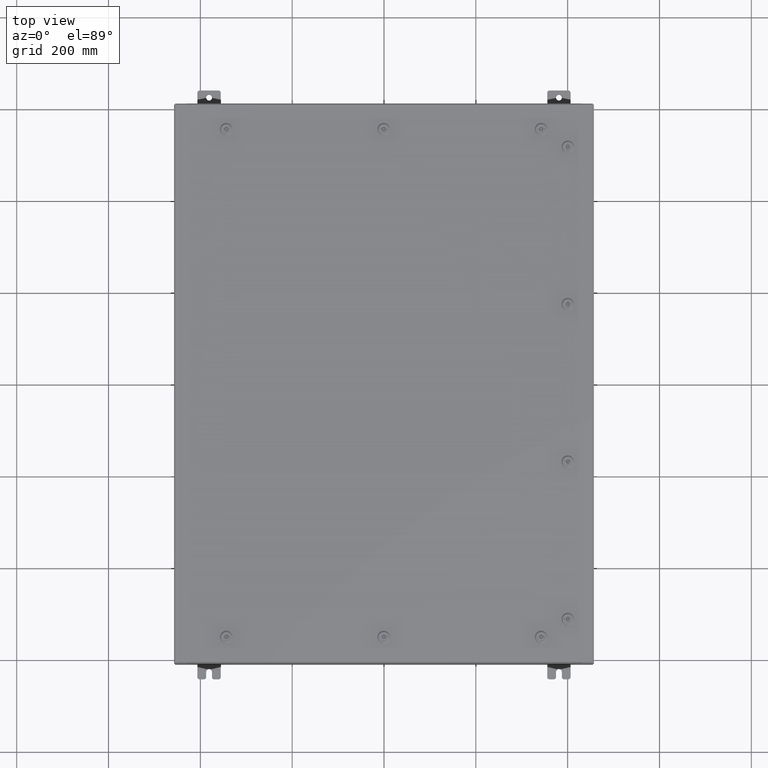
[diagram: clean part render]
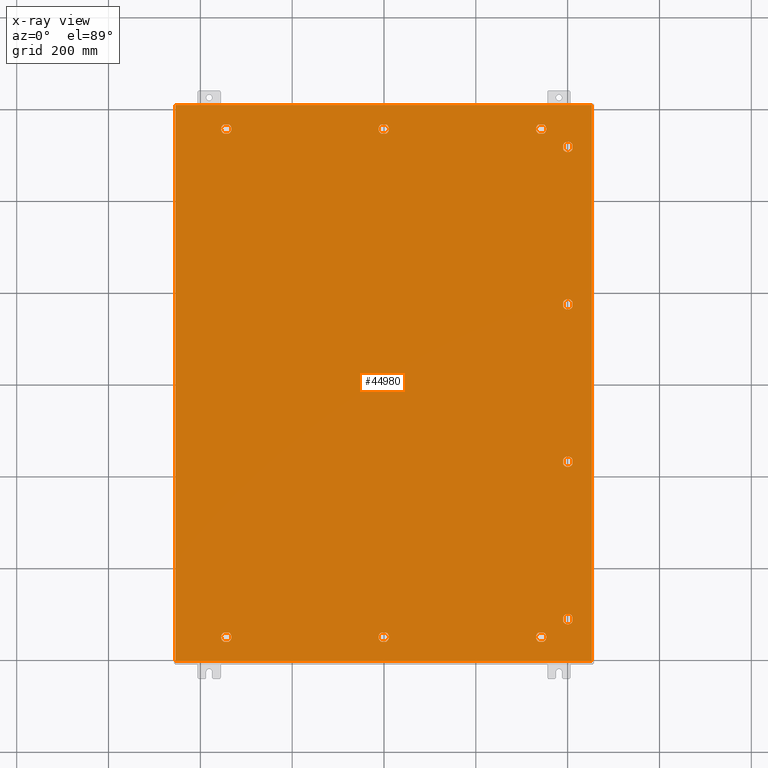
[diagram: x-ray — body ghosted, one internal face saturated and labeled with its STEP entity id]
A machine part, top view, then the same camera in x-ray: the body is ghosted and one INTERNAL B-rep face — a face not visible from any outside direction — is saturated and labeled: STEP entity #44980.
In plain terms, the highlighted planar face has unit normal (0, 0, -1).
Its self-contained STEP definition (entity closure, byte-faithful):
#306 = CARTESIAN_POINT ( 'NONE',  ( 17.84980000000000200, -23.84979999999999800, -0.07470000000000000300 ) ) ;
#387 = DIRECTION ( 'NONE',  ( -1.000000000000000000, 0.0000000000000000000, 0.0000000000000000000 ) ) ;
#906 = EDGE_LOOP ( 'NONE', ( #48508, #42417, #46072, #37396, #57205 ) ) ;
#1075 = EDGE_CURVE ( 'NONE', #38600, #50022, #60122, .T. ) ;
#1198 = VERTEX_POINT ( 'NONE', #4978 ) ;
#1420 = CARTESIAN_POINT ( 'NONE',  ( -13.49999999999998600, 21.78780000000000400, -0.07470000000000003000 ) ) ;
#1444 = FACE_BOUND ( 'NONE', #25262, .T. ) ;
#1600 = VERTEX_POINT ( 'NONE', #18370 ) ;
#2017 = DIRECTION ( 'NONE',  ( -1.000000000000000000, 0.0000000000000000000, 0.0000000000000000000 ) ) ;
#2166 = AXIS2_PLACEMENT_3D ( 'NONE', #65675, #33818, #2017 ) ;
#2771 = VERTEX_POINT ( 'NONE', #14707 ) ;
#3041 = EDGE_LOOP ( 'NONE', ( #9754, #36433, #45823, #44235 ) ) ;
#3119 = FACE_BOUND ( 'NONE', #32225, .T. ) ;
#3164 = VERTEX_POINT ( 'NONE', #34543 ) ;
#3174 = ORIENTED_EDGE ( 'NONE', *, *, #46554, .T. ) ;
#3267 = DIRECTION ( 'NONE',  ( -0.0000000000000000000, -0.0000000000000000000, 1.000000000000000000 ) ) ;
#3432 = CARTESIAN_POINT ( 'NONE',  ( -0.1994523752678657700, -22.18280000000000400, -0.07470000000000003000 ) ) ;
#3599 = VERTEX_POINT ( 'NONE', #28894 ) ;
#3615 = CARTESIAN_POINT ( 'NONE',  ( 13.30054762473209400, 22.18280000000000000, -0.07470000000000003000 ) ) ;
#3850 = PLANE ( 'NONE',  #26651 ) ;
#4008 = CARTESIAN_POINT ( 'NONE',  ( 13.69945237526786900, 21.39280000000001200, -0.07470000000000003000 ) ) ;
#4461 = CARTESIAN_POINT ( 'NONE',  ( -0.1994523752678657700, 22.18280000000000400, -0.07470000000000003000 ) ) ;
#4508 = CARTESIAN_POINT ( 'NONE',  ( 15.78780000000001500, 20.25000000000001400, -0.07470000000000003000 ) ) ;
#4541 = DIRECTION ( 'NONE',  ( -0.0000000000000000000, -0.0000000000000000000, 1.000000000000000000 ) ) ;
#4978 = CARTESIAN_POINT ( 'NONE',  ( -17.84979999999999800, -23.84979999999999800, -0.07470000000000000300 ) ) ;
#5150 = VECTOR ( 'NONE', #14021, 39.37007874015748100 ) ;
#5290 = LINE ( 'NONE', #21776, #61752 ) ;
#5954 = CARTESIAN_POINT ( 'NONE',  ( 0.1994523752679067700, -22.18280000000000000, -0.07470000000000003000 ) ) ;
#6324 = DIRECTION ( 'NONE',  ( 1.000000000000000000, 1.095739467627836300E-014, 0.0000000000000000000 ) ) ;
#6329 = ORIENTED_EDGE ( 'NONE', *, *, #26984, .T. ) ;
#6400 = EDGE_CURVE ( 'NONE', #60378, #61275, #44065, .T. ) ;
#6637 = ORIENTED_EDGE ( 'NONE', *, *, #8321, .T. ) ;
#6643 = VECTOR ( 'NONE', #36662, 39.37007874015748100 ) ;
#6761 = DIRECTION ( 'NONE',  ( 0.0000000000000000000, 1.000000000000000000, 0.0000000000000000000 ) ) ;
#6772 = DIRECTION ( 'NONE',  ( -1.000000000000000000, 0.0000000000000000000, 0.0000000000000000000 ) ) ;
#6839 = LINE ( 'NONE', #35120, #5150 ) ;
#7018 = ORIENTED_EDGE ( 'NONE', *, *, #34678, .T. ) ;
#7108 = ORIENTED_EDGE ( 'NONE', *, *, #62662, .T. ) ;
#7123 = VERTEX_POINT ( 'NONE', #30633 ) ;
#7214 = CARTESIAN_POINT ( 'NONE',  ( 13.30054762473210400, -21.39280000000001200, -0.07470000000000000300 ) ) ;
#7455 = LINE ( 'NONE', #43833, #21538 ) ;
#7635 = CARTESIAN_POINT ( 'NONE',  ( 16.18280000000000700, 6.550547624732131700, -0.07470000000000003000 ) ) ;
#7692 = VERTEX_POINT ( 'NONE', #56244 ) ;
#7770 = CARTESIAN_POINT ( 'NONE',  ( -17.84979999999999500, 23.84980000000000200, -0.07470000000000000300 ) ) ;
#7843 = CARTESIAN_POINT ( 'NONE',  ( 15.39280000000002800, -20.44945237526790300, -0.07470000000000000300 ) ) ;
#7955 = ORIENTED_EDGE ( 'NONE', *, *, #21860, .F. ) ;
#8001 = CIRCLE ( 'NONE', #53369, 0.4424999999999961700 ) ;
#8034 = CIRCLE ( 'NONE', #30403, 0.4424999999999972800 ) ;
#8117 = VERTEX_POINT ( 'NONE', #50261 ) ;
#8249 = CARTESIAN_POINT ( 'NONE',  ( 0.1994523752678995500, -21.39280000000001200, -0.07470000000000003000 ) ) ;
#8273 = DIRECTION ( 'NONE',  ( -0.0000000000000000000, -0.0000000000000000000, 1.000000000000000000 ) ) ;
#8321 = EDGE_CURVE ( 'NONE', #44843, #31300, #58088, .T. ) ;
#8669 = CARTESIAN_POINT ( 'NONE',  ( -13.30054762473210200, 21.39280000000001200, -0.07470000000000003000 ) ) ;
#8826 = ORIENTED_EDGE ( 'NONE', *, *, #63099, .T. ) ;
#9149 = CIRCLE ( 'NONE', #9357, 0.4424999999999961700 ) ;
#9187 = DIRECTION ( 'NONE',  ( -1.000000000000000000, 0.0000000000000000000, -0.0000000000000000000 ) ) ;
#9357 = AXIS2_PLACEMENT_3D ( 'NONE', #53197, #21418, #58553 ) ;
#9399 = CARTESIAN_POINT ( 'NONE',  ( 15.78780000000001500, 20.25000000000001400, -0.07470000000000003000 ) ) ;
#9745 = LINE ( 'NONE', #19995, #36274 ) ;
#9754 = ORIENTED_EDGE ( 'NONE', *, *, #63931, .T. ) ;
#9821 = VECTOR ( 'NONE', #33399, 39.37007874015748100 ) ;
#9825 = EDGE_CURVE ( 'NONE', #61275, #68679, #41334, .T. ) ;
#9854 = DIRECTION ( 'NONE',  ( -1.000000000000000000, 0.0000000000000000000, 0.0000000000000000000 ) ) ;
#9980 = LINE ( 'NONE', #8669, #63123 ) ;
#10262 = CARTESIAN_POINT ( 'NONE',  ( 15.78780000000000800, -6.750000000000014200, -0.07470000000000003000 ) ) ;
#10369 = VERTEX_POINT ( 'NONE', #44997 ) ;
#10451 = CIRCLE ( 'NONE', #17492, 0.4424999999999983400 ) ;
#10923 = DIRECTION ( 'NONE',  ( 1.000000000000000000, -0.0000000000000000000, -0.0000000000000000000 ) ) ;
#11052 = DIRECTION ( 'NONE',  ( -0.0000000000000000000, -0.0000000000000000000, 1.000000000000000000 ) ) ;
#11160 = EDGE_CURVE ( 'NONE', #3164, #19663, #65425, .T. ) ;
#11279 = CARTESIAN_POINT ( 'NONE',  ( -13.49999999999998600, -21.78780000000000800, -0.07470000000000003000 ) ) ;
#11370 = ORIENTED_EDGE ( 'NONE', *, *, #44320, .T. ) ;
#11476 = EDGE_CURVE ( 'NONE', #22171, #40391, #56992, .T. ) ;
#12319 = CIRCLE ( 'NONE', #25715, 0.4424999999999983400 ) ;
#12491 = CARTESIAN_POINT ( 'NONE',  ( 15.39280000000001500, -6.949452375267905600, -0.07470000000000000300 ) ) ;
#12700 = ORIENTED_EDGE ( 'NONE', *, *, #22223, .T. ) ;
#12738 = EDGE_CURVE ( 'NONE', #7123, #59946, #48623, .T. ) ;
#13030 = EDGE_CURVE ( 'NONE', #63042, #60378, #13732, .T. ) ;
#13151 = VERTEX_POINT ( 'NONE', #53772 ) ;
#13732 = CIRCLE ( 'NONE', #26865, 0.4424999999999983400 ) ;
#13887 = CARTESIAN_POINT ( 'NONE',  ( -0.1994523752678689600, 21.39280000000001200, -0.07470000000000003000 ) ) ;
#13976 = DIRECTION ( 'NONE',  ( 1.000000000000000000, 0.0000000000000000000, 0.0000000000000000000 ) ) ;
#14021 = DIRECTION ( 'NONE',  ( -5.478697338139280800E-015, 1.000000000000000000, 0.0000000000000000000 ) ) ;
#14062 = EDGE_CURVE ( 'NONE', #24267, #36417, #64511, .T. ) ;
#14436 = VERTEX_POINT ( 'NONE', #59991 ) ;
#14582 = VERTEX_POINT ( 'NONE', #7770 ) ;
#14694 = ORIENTED_EDGE ( 'NONE', *, *, #14062, .T. ) ;
#14707 = CARTESIAN_POINT ( 'NONE',  ( 15.39280000000001900, 6.949452375267904700, -0.07470000000000003000 ) ) ;
#14722 = DIRECTION ( 'NONE',  ( -1.000000000000000000, 0.0000000000000000000, 0.0000000000000000000 ) ) ;
#14833 = DIRECTION ( 'NONE',  ( -0.0000000000000000000, -0.0000000000000000000, 1.000000000000000000 ) ) ;
#15073 = ORIENTED_EDGE ( 'NONE', *, *, #30126, .T. ) ;
#15306 = VECTOR ( 'NONE', #44229, 39.37007874015748100 ) ;
#15426 = CARTESIAN_POINT ( 'NONE',  ( 13.49999999999998600, 21.78780000000000400, -0.07470000000000003000 ) ) ;
#15541 = FACE_BOUND ( 'NONE', #906, .T. ) ;
#15576 = DIRECTION ( 'NONE',  ( -1.000000000000000000, 0.0000000000000000000, 0.0000000000000000000 ) ) ;
#16207 = CARTESIAN_POINT ( 'NONE',  ( 16.18280000000001800, -20.05054762473213300, -0.07470000000000003000 ) ) ;
#16485 = CIRCLE ( 'NONE', #60446, 0.4424999999999983400 ) ;
#16574 = DIRECTION ( 'NONE',  ( -1.000000000000000000, 0.0000000000000000000, 0.0000000000000000000 ) ) ;
#16697 = CARTESIAN_POINT ( 'NONE',  ( 0.1994523752679067700, 22.18280000000000000, -0.07470000000000003000 ) ) ;
#16715 = EDGE_CURVE ( 'NONE', #66272, #49101, #32693, .T. ) ;
#17210 = FACE_BOUND ( 'NONE', #66529, .T. ) ;
#17378 = CARTESIAN_POINT ( 'NONE',  ( 13.30054762473210400, -21.39280000000001200, -0.07470000000000003000 ) ) ;
#17408 = VERTEX_POINT ( 'NONE', #7635 ) ;
#17492 = AXIS2_PLACEMENT_3D ( 'NONE', #15426, #52523, #20757 ) ;
#17926 = ORIENTED_EDGE ( 'NONE', *, *, #65176, .T. ) ;
#18006 = VECTOR ( 'NONE', #48704, 39.37007874015748100 ) ;
#18301 = CIRCLE ( 'NONE', #58293, 0.4424999999999972800 ) ;
#18370 = CARTESIAN_POINT ( 'NONE',  ( 13.30054762473209500, -22.18280000000000000, -0.07470000000000003000 ) ) ;
#18782 = CARTESIAN_POINT ( 'NONE',  ( 15.39280000000001900, 6.949452375267904700, -0.07470000000000003000 ) ) ;
#18882 = FACE_BOUND ( 'NONE', #20314, .T. ) ;
#19041 = VECTOR ( 'NONE', #10923, 39.37007874015748100 ) ;
#19314 = CARTESIAN_POINT ( 'NONE',  ( 0.1994523752679049900, 22.18280000000000000, -0.07470000000000003000 ) ) ;
#19663 = VERTEX_POINT ( 'NONE', #29306 ) ;
#19915 = LINE ( 'NONE', #47781, #46453 ) ;
#19995 = CARTESIAN_POINT ( 'NONE',  ( 15.39280000000001500, -6.949452375267904700, -0.07470000000000003000 ) ) ;
#20063 = CARTESIAN_POINT ( 'NONE',  ( 13.49999999999998600, -21.78780000000000400, -0.07470000000000003000 ) ) ;
#20131 = LINE ( 'NONE', #3615, #60864 ) ;
#20265 = ORIENTED_EDGE ( 'NONE', *, *, #42089, .T. ) ;
#20314 = EDGE_LOOP ( 'NONE', ( #52861, #37749, #42099, #45806 ) ) ;
#20660 = EDGE_CURVE ( 'NONE', #40391, #46937, #18301, .T. ) ;
#20663 = CARTESIAN_POINT ( 'NONE',  ( 13.30054762473209500, -22.18280000000000000, -0.07470000000000003000 ) ) ;
#20757 = DIRECTION ( 'NONE',  ( -1.000000000000000000, 0.0000000000000000000, 0.0000000000000000000 ) ) ;
#20762 = EDGE_CURVE ( 'NONE', #49609, #22171, #29095, .T. ) ;
#21237 = EDGE_LOOP ( 'NONE', ( #36659, #7955, #52847, #25186 ) ) ;
#21418 = DIRECTION ( 'NONE',  ( -0.0000000000000000000, -0.0000000000000000000, 1.000000000000000000 ) ) ;
#21537 = CARTESIAN_POINT ( 'NONE',  ( -13.69945237526786700, 22.18280000000000400, -0.07470000000000003000 ) ) ;
#21538 = VECTOR ( 'NONE', #6761, 39.37007874015748100 ) ;
#21602 = CARTESIAN_POINT ( 'NONE',  ( 13.69945237526786700, 22.18280000000000400, -0.07470000000000003000 ) ) ;
#21711 = ORIENTED_EDGE ( 'NONE', *, *, #11476, .T. ) ;
#21776 = CARTESIAN_POINT ( 'NONE',  ( 17.84980000000000200, 23.84980000000000900, -0.07469999999999804600 ) ) ;
#21860 = EDGE_CURVE ( 'NONE', #1198, #27035, #61416, .T. ) ;
#22013 = EDGE_CURVE ( 'NONE', #60797, #17408, #68904, .T. ) ;
#22171 = VERTEX_POINT ( 'NONE', #61462 ) ;
#22223 = EDGE_CURVE ( 'NONE', #59946, #8117, #23182, .T. ) ;
#22358 = AXIS2_PLACEMENT_3D ( 'NONE', #27576, #64783, #32923 ) ;
#22724 = ORIENTED_EDGE ( 'NONE', *, *, #61360, .T. ) ;
#22937 = EDGE_CURVE ( 'NONE', #33892, #66272, #66585, .T. ) ;
#22955 = ORIENTED_EDGE ( 'NONE', *, *, #22013, .T. ) ;
#23168 = CARTESIAN_POINT ( 'NONE',  ( -13.69945237526786900, -22.18280000000000700, -0.07470000000000003000 ) ) ;
#23182 = CIRCLE ( 'NONE', #67267, 0.4424999999999961700 ) ;
#24132 = EDGE_CURVE ( 'NONE', #43789, #7123, #9149, .T. ) ;
#24267 = VERTEX_POINT ( 'NONE', #32772 ) ;
#24653 = CARTESIAN_POINT ( 'NONE',  ( 15.78780000000001000, 6.750000000000014200, -0.07470000000000003000 ) ) ;
#24742 = EDGE_CURVE ( 'NONE', #1600, #63042, #50584, .T. ) ;
#25186 = ORIENTED_EDGE ( 'NONE', *, *, #54623, .F. ) ;
#25262 = EDGE_LOOP ( 'NONE', ( #31622, #27220, #17926, #55419, #46378 ) ) ;
#25333 = DIRECTION ( 'NONE',  ( 1.095739467627835000E-014, -1.000000000000000000, 0.0000000000000000000 ) ) ;
#25398 = DIRECTION ( 'NONE',  ( -1.000000000000000000, -9.877868451667478400E-015, 0.0000000000000000000 ) ) ;
#25715 = AXIS2_PLACEMENT_3D ( 'NONE', #31664, #68848, #36993 ) ;
#26180 = CARTESIAN_POINT ( 'NONE',  ( 0.1994523752678995500, 21.39280000000001200, -0.07470000000000000300 ) ) ;
#26297 = CARTESIAN_POINT ( 'NONE',  ( -13.05749999999999000, -21.78780000000000800, -0.07470000000000003000 ) ) ;
#26305 = CIRCLE ( 'NONE', #68653, 0.4424999999999961700 ) ;
#26574 = DIRECTION ( 'NONE',  ( -0.0000000000000000000, -0.0000000000000000000, 1.000000000000000000 ) ) ;
#26648 = CARTESIAN_POINT ( 'NONE',  ( 15.78780000000000800, -6.750000000000014200, -0.07470000000000003000 ) ) ;
#26651 = AXIS2_PLACEMENT_3D ( 'NONE', #67010, #40909, #9187 ) ;
#26793 = CARTESIAN_POINT ( 'NONE',  ( -13.69945237526786900, 21.39280000000001200, -0.07470000000000003000 ) ) ;
#26865 = AXIS2_PLACEMENT_3D ( 'NONE', #31483, #68671, #36807 ) ;
#26984 = EDGE_CURVE ( 'NONE', #57033, #44371, #62107, .T. ) ;
#27035 = VERTEX_POINT ( 'NONE', #306 ) ;
#27201 = VECTOR ( 'NONE', #33122, 39.37007874015748100 ) ;
#27208 = EDGE_CURVE ( 'NONE', #3599, #38600, #28859, .T. ) ;
#27220 = ORIENTED_EDGE ( 'NONE', *, *, #16715, .T. ) ;
#27444 = VECTOR ( 'NONE', #6324, 39.37007874015748100 ) ;
#27520 = CARTESIAN_POINT ( 'NONE',  ( 13.94249999999998500, -21.78780000000000400, -0.07470000000000003000 ) ) ;
#27576 = CARTESIAN_POINT ( 'NONE',  ( 1.529834876451987200E-014, -21.78780000000000400, -0.07470000000000003000 ) ) ;
#27619 = CARTESIAN_POINT ( 'NONE',  ( 1.529834876451987200E-014, 21.78780000000000400, -0.07470000000000003000 ) ) ;
#27791 = EDGE_CURVE ( 'NONE', #10369, #3599, #26305, .T. ) ;
#27816 = CARTESIAN_POINT ( 'NONE',  ( 15.39280000000001900, 20.05054762473213300, -0.07470000000000003000 ) ) ;
#28052 = ORIENTED_EDGE ( 'NONE', *, *, #57336, .T. ) ;
#28278 = DIRECTION ( 'NONE',  ( -0.0000000000000000000, -0.0000000000000000000, 1.000000000000000000 ) ) ;
#28493 = AXIS2_PLACEMENT_3D ( 'NONE', #9399, #46480, #14722 ) ;
#28691 = AXIS2_PLACEMENT_3D ( 'NONE', #27619, #64818, #32966 ) ;
#28859 = LINE ( 'NONE', #54215, #27201 ) ;
#28894 = CARTESIAN_POINT ( 'NONE',  ( 15.39280000000002200, 20.44945237526790300, -0.07470000000000003000 ) ) ;
#29095 = LINE ( 'NONE', #5954, #27444 ) ;
#29231 = CARTESIAN_POINT ( 'NONE',  ( 16.18280000000000700, -6.550547624732131700, -0.07470000000000003000 ) ) ;
#29306 = CARTESIAN_POINT ( 'NONE',  ( -13.05749999999998900, 21.78780000000000400, -0.07470000000000003000 ) ) ;
#29376 = ORIENTED_EDGE ( 'NONE', *, *, #38529, .T. ) ;
#29552 = DIRECTION ( 'NONE',  ( -1.000000000000000000, 0.0000000000000000000, 0.0000000000000000000 ) ) ;
#29597 = VERTEX_POINT ( 'NONE', #41671 ) ;
#29654 = DIRECTION ( 'NONE',  ( 5.478697338139235000E-015, 1.000000000000000000, 0.0000000000000000000 ) ) ;
#29670 = FACE_BOUND ( 'NONE', #68082, .T. ) ;
#29814 = AXIS2_PLACEMENT_3D ( 'NONE', #58366, #26574, #63760 ) ;
#29913 = DIRECTION ( 'NONE',  ( -0.0000000000000000000, -0.0000000000000000000, 1.000000000000000000 ) ) ;
#29969 = CARTESIAN_POINT ( 'NONE',  ( -17.84979999999999500, 23.84980000000000900, -0.07470000000000129300 ) ) ;
#29975 = DIRECTION ( 'NONE',  ( -1.000000000000000000, 0.0000000000000000000, 0.0000000000000000000 ) ) ;
#30081 = DIRECTION ( 'NONE',  ( -0.0000000000000000000, -0.0000000000000000000, 1.000000000000000000 ) ) ;
#30126 = EDGE_CURVE ( 'NONE', #36417, #57033, #62612, .T. ) ;
#30403 = AXIS2_PLACEMENT_3D ( 'NONE', #35013, #3267, #40359 ) ;
#30590 = DIRECTION ( 'NONE',  ( 1.000000000000000000, 0.0000000000000000000, 0.0000000000000000000 ) ) ;
#30633 = CARTESIAN_POINT ( 'NONE',  ( 15.39280000000002200, -20.05054762473213300, -0.07470000000000003000 ) ) ;
#30960 = CARTESIAN_POINT ( 'NONE',  ( 13.69945237526786900, -22.18280000000000400, -0.07470000000000003000 ) ) ;
#31005 = EDGE_CURVE ( 'NONE', #7692, #2771, #37602, .T. ) ;
#31055 = CARTESIAN_POINT ( 'NONE',  ( -13.49999999999998600, 21.78780000000000400, -0.07470000000000003000 ) ) ;
#31300 = VERTEX_POINT ( 'NONE', #21602 ) ;
#31318 = FACE_BOUND ( 'NONE', #3041, .T. ) ;
#31483 = CARTESIAN_POINT ( 'NONE',  ( 13.49999999999998600, -21.78780000000000400, -0.07470000000000003000 ) ) ;
#31622 = ORIENTED_EDGE ( 'NONE', *, *, #22937, .T. ) ;
#31654 = AXIS2_PLACEMENT_3D ( 'NONE', #60086, #28278, #65487 ) ;
#31664 = CARTESIAN_POINT ( 'NONE',  ( -13.49999999999998600, -21.78780000000000800, -0.07470000000000003000 ) ) ;
#31854 = CIRCLE ( 'NONE', #28691, 0.4424999999999972800 ) ;
#31958 = EDGE_CURVE ( 'NONE', #2771, #60797, #49994, .T. ) ;
#31994 = DIRECTION ( 'NONE',  ( -1.000000000000000000, 0.0000000000000000000, 0.0000000000000000000 ) ) ;
#32139 = ORIENTED_EDGE ( 'NONE', *, *, #20660, .T. ) ;
#32143 = CARTESIAN_POINT ( 'NONE',  ( -13.69945237526787100, -21.39280000000001500, -0.07470000000000003000 ) ) ;
#32171 = DIRECTION ( 'NONE',  ( -0.0000000000000000000, -0.0000000000000000000, 1.000000000000000000 ) ) ;
#32225 = EDGE_LOOP ( 'NONE', ( #61988, #47884, #46345, #28052, #54185 ) ) ;
#32388 = EDGE_CURVE ( 'NONE', #50022, #10369, #6839, .T. ) ;
#32693 = LINE ( 'NONE', #40390, #57569 ) ;
#32772 = CARTESIAN_POINT ( 'NONE',  ( -13.30054762473209500, -22.18280000000000400, -0.07470000000000000300 ) ) ;
#32923 = DIRECTION ( 'NONE',  ( -1.000000000000000000, 0.0000000000000000000, 0.0000000000000000000 ) ) ;
#32966 = DIRECTION ( 'NONE',  ( -1.000000000000000000, 9.877868451667453200E-015, 0.0000000000000000000 ) ) ;
#33053 = VECTOR ( 'NONE', #29654, 39.37007874015748100 ) ;
#33122 = DIRECTION ( 'NONE',  ( -1.095739467627844000E-014, -1.000000000000000000, 0.0000000000000000000 ) ) ;
#33399 = DIRECTION ( 'NONE',  ( -1.000000000000000000, 0.0000000000000000000, 0.0000000000000000000 ) ) ;
#33606 = DIRECTION ( 'NONE',  ( 1.095739467627844000E-014, -1.000000000000000000, 0.0000000000000000000 ) ) ;
#33685 = EDGE_CURVE ( 'NONE', #46937, #47863, #49869, .T. ) ;
#33818 = DIRECTION ( 'NONE',  ( -0.0000000000000000000, -0.0000000000000000000, 1.000000000000000000 ) ) ;
#33840 = VECTOR ( 'NONE', #63946, 39.37007874015748100 ) ;
#33892 = VERTEX_POINT ( 'NONE', #4461 ) ;
#33957 = CARTESIAN_POINT ( 'NONE',  ( 15.39280000000001200, -6.550547624732131700, -0.07470000000000003000 ) ) ;
#34059 = ORIENTED_EDGE ( 'NONE', *, *, #31005, .T. ) ;
#34435 = AXIS2_PLACEMENT_3D ( 'NONE', #11279, #48348, #16574 ) ;
#34543 = CARTESIAN_POINT ( 'NONE',  ( -13.30054762473210200, 21.39280000000001200, -0.07470000000000000300 ) ) ;
#34678 = EDGE_CURVE ( 'NONE', #17408, #7692, #19915, .T. ) ;
#35013 = CARTESIAN_POINT ( 'NONE',  ( 1.529834876451987200E-014, 21.78780000000000400, -0.07470000000000003000 ) ) ;
#35120 = CARTESIAN_POINT ( 'NONE',  ( 16.18280000000001100, 20.44945237526789600, -0.07470000000000003000 ) ) ;
#35244 = CIRCLE ( 'NONE', #36181, 0.4424999999999983400 ) ;
#35334 = CARTESIAN_POINT ( 'NONE',  ( 15.39280000000001400, 6.550547624732131700, -0.07470000000000003000 ) ) ;
#35570 = EDGE_CURVE ( 'NONE', #27035, #13151, #7455, .T. ) ;
#35757 = VECTOR ( 'NONE', #29552, 39.37007874015748100 ) ;
#36166 = VECTOR ( 'NONE', #30590, 39.37007874015748100 ) ;
#36181 = AXIS2_PLACEMENT_3D ( 'NONE', #10262, #47340, #15576 ) ;
#36274 = VECTOR ( 'NONE', #25333, 39.37007874015748100 ) ;
#36319 = CARTESIAN_POINT ( 'NONE',  ( -13.49999999999998600, -21.78780000000000800, -0.07470000000000003000 ) ) ;
#36396 = DIRECTION ( 'NONE',  ( -1.000000000000000000, 0.0000000000000000000, 0.0000000000000000000 ) ) ;
#36417 = VERTEX_POINT ( 'NONE', #26297 ) ;
#36433 = ORIENTED_EDGE ( 'NONE', *, *, #50109, .T. ) ;
#36659 = ORIENTED_EDGE ( 'NONE', *, *, #35570, .F. ) ;
#36662 = DIRECTION ( 'NONE',  ( 1.000000000000000000, -1.095739467627832000E-014, 0.0000000000000000000 ) ) ;
#36807 = DIRECTION ( 'NONE',  ( -1.000000000000000000, 0.0000000000000000000, 0.0000000000000000000 ) ) ;
#36993 = DIRECTION ( 'NONE',  ( -1.000000000000000000, 0.0000000000000000000, 0.0000000000000000000 ) ) ;
#37120 = AXIS2_PLACEMENT_3D ( 'NONE', #36319, #4541, #41624 ) ;
#37396 = ORIENTED_EDGE ( 'NONE', *, *, #49023, .T. ) ;
#37602 = CIRCLE ( 'NONE', #45992, 0.4424999999999983400 ) ;
#37749 = ORIENTED_EDGE ( 'NONE', *, *, #32388, .T. ) ;
#38498 = DIRECTION ( 'NONE',  ( -0.0000000000000000000, -0.0000000000000000000, 1.000000000000000000 ) ) ;
#38513 = CARTESIAN_POINT ( 'NONE',  ( 13.69945237526787100, -21.39280000000001200, -0.07470000000000003000 ) ) ;
#38529 = EDGE_CURVE ( 'NONE', #47863, #49609, #61035, .T. ) ;
#38600 = VERTEX_POINT ( 'NONE', #27816 ) ;
#38667 = EDGE_CURVE ( 'NONE', #52271, #66862, #45201, .T. ) ;
#38685 = CARTESIAN_POINT ( 'NONE',  ( 0.4425000000000125500, 21.78780000000000400, -0.07470000000000003000 ) ) ;
#38686 = CARTESIAN_POINT ( 'NONE',  ( -13.30054762473209400, 22.18280000000000000, -0.07470000000000003000 ) ) ;
#38701 = VERTEX_POINT ( 'NONE', #23168 ) ;
#39332 = VERTEX_POINT ( 'NONE', #33957 ) ;
#39986 = CARTESIAN_POINT ( 'NONE',  ( 13.49999999999998600, -21.78780000000000400, -0.07470000000000003000 ) ) ;
#40359 = DIRECTION ( 'NONE',  ( -1.000000000000000000, 0.0000000000000000000, 0.0000000000000000000 ) ) ;
#40390 = CARTESIAN_POINT ( 'NONE',  ( 0.1994523752678995500, 21.39280000000001200, -0.07470000000000003000 ) ) ;
#40391 = VERTEX_POINT ( 'NONE', #62201 ) ;
#40713 = DIRECTION ( 'NONE',  ( -1.000000000000000000, -1.095739467627832000E-014, 0.0000000000000000000 ) ) ;
#40909 = DIRECTION ( 'NONE',  ( 0.0000000000000000000, 0.0000000000000000000, -1.000000000000000000 ) ) ;
#41334 = LINE ( 'NONE', #17378, #9821 ) ;
#41455 = CARTESIAN_POINT ( 'NONE',  ( -0.1994523752678689600, -21.39280000000001200, -0.07470000000000003000 ) ) ;
#41594 = DIRECTION ( 'NONE',  ( -0.0000000000000000000, -0.0000000000000000000, 1.000000000000000000 ) ) ;
#41624 = DIRECTION ( 'NONE',  ( -1.000000000000000000, 0.0000000000000000000, 0.0000000000000000000 ) ) ;
#41671 = CARTESIAN_POINT ( 'NONE',  ( 13.30054762473210200, 21.39280000000001200, -0.07470000000000003000 ) ) ;
#41805 = LINE ( 'NONE', #29969, #55946 ) ;
#42089 = EDGE_CURVE ( 'NONE', #8117, #43789, #66488, .T. ) ;
#42099 = ORIENTED_EDGE ( 'NONE', *, *, #27791, .T. ) ;
#42185 = EDGE_CURVE ( 'NONE', #48677, #3164, #9980, .T. ) ;
#42417 = ORIENTED_EDGE ( 'NONE', *, *, #42185, .T. ) ;
#42780 = CARTESIAN_POINT ( 'NONE',  ( 1.529834876451987200E-014, -21.78780000000000400, -0.07470000000000003000 ) ) ;
#42793 = AXIS2_PLACEMENT_3D ( 'NONE', #61724, #29913, #67098 ) ;
#43217 = AXIS2_PLACEMENT_3D ( 'NONE', #64012, #32171, #387 ) ;
#43430 = CARTESIAN_POINT ( 'NONE',  ( 16.18280000000001500, -20.44945237526789600, -0.07470000000000003000 ) ) ;
#43733 = EDGE_CURVE ( 'NONE', #59768, #57731, #16485, .T. ) ;
#43764 = FACE_BOUND ( 'NONE', #63683, .T. ) ;
#43789 = VERTEX_POINT ( 'NONE', #16207 ) ;
#43833 = CARTESIAN_POINT ( 'NONE',  ( 17.84980000000000200, -23.84980000000000200, -0.07470000000000019700 ) ) ;
#43929 = EDGE_CURVE ( 'NONE', #66862, #48677, #62981, .T. ) ;
#44065 = CIRCLE ( 'NONE', #47068, 0.4424999999999983400 ) ;
#44106 = AXIS2_PLACEMENT_3D ( 'NONE', #1420, #38498, #6772 ) ;
#44229 = DIRECTION ( 'NONE',  ( -1.000000000000000000, 1.095739467627832000E-014, 0.0000000000000000000 ) ) ;
#44235 = ORIENTED_EDGE ( 'NONE', *, *, #49540, .T. ) ;
#44320 = EDGE_CURVE ( 'NONE', #44371, #38701, #12319, .T. ) ;
#44371 = VERTEX_POINT ( 'NONE', #32143 ) ;
#44467 = EDGE_CURVE ( 'NONE', #49979, #33892, #60392, .T. ) ;
#44559 = CARTESIAN_POINT ( 'NONE',  ( -13.30054762473209500, -22.18280000000000400, -0.07470000000000003000 ) ) ;
#44843 = VERTEX_POINT ( 'NONE', #62066 ) ;
#44980 = ADVANCED_FACE ( 'NONE', ( #45426, #31318, #18882, #17210, #3119, #57907, #43764, #29670, #15541, #1444, #56222 ), #3850, .T. ) ;
#44997 = CARTESIAN_POINT ( 'NONE',  ( 16.18280000000001100, 20.44945237526789600, -0.07470000000000000300 ) ) ;
#45007 = CIRCLE ( 'NONE', #52882, 0.4424999999999961700 ) ;
#45201 = LINE ( 'NONE', #38686, #15306 ) ;
#45325 = DIRECTION ( 'NONE',  ( -1.000000000000000000, 0.0000000000000000000, 0.0000000000000000000 ) ) ;
#45426 = FACE_BOUND ( 'NONE', #63515, .T. ) ;
#45712 = DIRECTION ( 'NONE',  ( 0.0000000000000000000, -1.000000000000000000, 0.0000000000000000000 ) ) ;
#45806 = ORIENTED_EDGE ( 'NONE', *, *, #27208, .T. ) ;
#45823 = ORIENTED_EDGE ( 'NONE', *, *, #43733, .T. ) ;
#45874 = CARTESIAN_POINT ( 'NONE',  ( 13.30054762473210200, 21.39280000000001200, -0.07470000000000003000 ) ) ;
#45992 = AXIS2_PLACEMENT_3D ( 'NONE', #24653, #61797, #29975 ) ;
#46072 = ORIENTED_EDGE ( 'NONE', *, *, #11160, .T. ) ;
#46345 = ORIENTED_EDGE ( 'NONE', *, *, #9825, .T. ) ;
#46378 = ORIENTED_EDGE ( 'NONE', *, *, #44467, .T. ) ;
#46453 = VECTOR ( 'NONE', #53123, 39.37007874015748100 ) ;
#46480 = DIRECTION ( 'NONE',  ( -0.0000000000000000000, -0.0000000000000000000, 1.000000000000000000 ) ) ;
#46554 = EDGE_CURVE ( 'NONE', #61925, #44843, #8001, .T. ) ;
#46581 = CARTESIAN_POINT ( 'NONE',  ( 13.49999999999998600, 21.78780000000000400, -0.07470000000000003000 ) ) ;
#46929 = VECTOR ( 'NONE', #33606, 39.37007874015748100 ) ;
#46937 = VERTEX_POINT ( 'NONE', #48676 ) ;
#47068 = AXIS2_PLACEMENT_3D ( 'NONE', #39986, #8273, #45325 ) ;
#47340 = DIRECTION ( 'NONE',  ( -0.0000000000000000000, -0.0000000000000000000, 1.000000000000000000 ) ) ;
#47781 = CARTESIAN_POINT ( 'NONE',  ( 16.18280000000000700, 6.949452375267900300, -0.07470000000000003000 ) ) ;
#47863 = VERTEX_POINT ( 'NONE', #41455 ) ;
#47884 = ORIENTED_EDGE ( 'NONE', *, *, #6400, .T. ) ;
#48023 = CARTESIAN_POINT ( 'NONE',  ( -17.84979999999999800, -23.84980000000000200, -0.07469999999999804600 ) ) ;
#48149 = DIRECTION ( 'NONE',  ( -1.000000000000000000, 9.877868451667453200E-015, 0.0000000000000000000 ) ) ;
#48348 = DIRECTION ( 'NONE',  ( -0.0000000000000000000, -0.0000000000000000000, 1.000000000000000000 ) ) ;
#48508 = ORIENTED_EDGE ( 'NONE', *, *, #43929, .T. ) ;
#48623 = LINE ( 'NONE', #65475, #46929 ) ;
#48676 = CARTESIAN_POINT ( 'NONE',  ( 0.1994523752679002700, -21.39280000000001200, -0.07470000000000003000 ) ) ;
#48677 = VERTEX_POINT ( 'NONE', #26793 ) ;
#48704 = DIRECTION ( 'NONE',  ( -1.000000000000000000, 1.095739467627836300E-014, 0.0000000000000000000 ) ) ;
#48790 = DIRECTION ( 'NONE',  ( 5.478697338139280800E-015, 1.000000000000000000, 0.0000000000000000000 ) ) ;
#49023 = EDGE_CURVE ( 'NONE', #19663, #52271, #57107, .T. ) ;
#49101 = VERTEX_POINT ( 'NONE', #26180 ) ;
#49540 = EDGE_CURVE ( 'NONE', #57731, #56400, #68769, .T. ) ;
#49609 = VERTEX_POINT ( 'NONE', #3432 ) ;
#49639 = CARTESIAN_POINT ( 'NONE',  ( 16.18280000000000400, -6.949452375267900300, -0.07470000000000003000 ) ) ;
#49869 = LINE ( 'NONE', #8249, #35757 ) ;
#49979 = VERTEX_POINT ( 'NONE', #19314 ) ;
#49994 = LINE ( 'NONE', #18782, #51626 ) ;
#50022 = VERTEX_POINT ( 'NONE', #67175 ) ;
#50109 = EDGE_CURVE ( 'NONE', #39332, #59768, #9745, .T. ) ;
#50261 = CARTESIAN_POINT ( 'NONE',  ( 16.18280000000001500, -20.44945237526789600, -0.07470000000000003000 ) ) ;
#50553 = DIRECTION ( 'NONE',  ( -1.095739467627835000E-014, -1.000000000000000000, 0.0000000000000000000 ) ) ;
#50584 = LINE ( 'NONE', #20663, #6643 ) ;
#50677 = ORIENTED_EDGE ( 'NONE', *, *, #12738, .T. ) ;
#51142 = EDGE_CURVE ( 'NONE', #54772, #49979, #8034, .T. ) ;
#51482 = LINE ( 'NONE', #44559, #64049 ) ;
#51626 = VECTOR ( 'NONE', #50553, 39.37007874015748100 ) ;
#51924 = LINE ( 'NONE', #45874, #36166 ) ;
#51925 = DIRECTION ( 'NONE',  ( -1.000000000000000000, 0.0000000000000000000, 0.0000000000000000000 ) ) ;
#52271 = VERTEX_POINT ( 'NONE', #57345 ) ;
#52473 = ORIENTED_EDGE ( 'NONE', *, *, #31958, .T. ) ;
#52523 = DIRECTION ( 'NONE',  ( -0.0000000000000000000, -0.0000000000000000000, 1.000000000000000000 ) ) ;
#52847 = ORIENTED_EDGE ( 'NONE', *, *, #64731, .F. ) ;
#52861 = ORIENTED_EDGE ( 'NONE', *, *, #1075, .T. ) ;
#52882 = AXIS2_PLACEMENT_3D ( 'NONE', #20063, #57182, #25398 ) ;
#53123 = DIRECTION ( 'NONE',  ( -5.478697338139235000E-015, 1.000000000000000000, 0.0000000000000000000 ) ) ;
#53197 = CARTESIAN_POINT ( 'NONE',  ( 15.78780000000001800, -20.25000000000001400, -0.07470000000000003000 ) ) ;
#53369 = AXIS2_PLACEMENT_3D ( 'NONE', #46581, #14833, #51925 ) ;
#53772 = CARTESIAN_POINT ( 'NONE',  ( 17.84980000000000200, 23.84980000000000200, -0.07470000000000000300 ) ) ;
#53973 = VECTOR ( 'NONE', #48790, 39.37007874015748100 ) ;
#54185 = ORIENTED_EDGE ( 'NONE', *, *, #24742, .T. ) ;
#54215 = CARTESIAN_POINT ( 'NONE',  ( 15.39280000000002200, 20.44945237526790300, -0.07470000000000003000 ) ) ;
#54623 = EDGE_CURVE ( 'NONE', #13151, #14582, #5290, .T. ) ;
#54772 = VERTEX_POINT ( 'NONE', #38685 ) ;
#55238 = DIRECTION ( 'NONE',  ( 1.000000000000000000, 1.095739467627832000E-014, 0.0000000000000000000 ) ) ;
#55419 = ORIENTED_EDGE ( 'NONE', *, *, #51142, .T. ) ;
#55946 = VECTOR ( 'NONE', #45712, 39.37007874015748100 ) ;
#56111 = AXIS2_PLACEMENT_3D ( 'NONE', #31055, #68239, #36396 ) ;
#56222 = FACE_OUTER_BOUND ( 'NONE', #21237, .T. ) ;
#56244 = CARTESIAN_POINT ( 'NONE',  ( 16.18280000000000700, 6.949452375267900300, -0.07470000000000000300 ) ) ;
#56389 = DIRECTION ( 'NONE',  ( 1.000000000000000000, 0.0000000000000000000, 0.0000000000000000000 ) ) ;
#56400 = VERTEX_POINT ( 'NONE', #29231 ) ;
#56992 = CIRCLE ( 'NONE', #42793, 0.4424999999999972800 ) ;
#57033 = VERTEX_POINT ( 'NONE', #60058 ) ;
#57107 = CIRCLE ( 'NONE', #56111, 0.4424999999999983400 ) ;
#57182 = DIRECTION ( 'NONE',  ( -0.0000000000000000000, -0.0000000000000000000, 1.000000000000000000 ) ) ;
#57205 = ORIENTED_EDGE ( 'NONE', *, *, #38667, .T. ) ;
#57251 = EDGE_CURVE ( 'NONE', #31300, #14436, #20131, .T. ) ;
#57336 = EDGE_CURVE ( 'NONE', #68679, #1600, #45007, .T. ) ;
#57345 = CARTESIAN_POINT ( 'NONE',  ( -13.30054762473209400, 22.18280000000000000, -0.07470000000000003000 ) ) ;
#57569 = VECTOR ( 'NONE', #56389, 39.37007874015748100 ) ;
#57731 = VERTEX_POINT ( 'NONE', #49639 ) ;
#57907 = FACE_BOUND ( 'NONE', #66877, .T. ) ;
#58088 = CIRCLE ( 'NONE', #29814, 0.4424999999999961700 ) ;
#58293 = AXIS2_PLACEMENT_3D ( 'NONE', #42780, #11052, #48149 ) ;
#58366 = CARTESIAN_POINT ( 'NONE',  ( 13.49999999999998600, 21.78780000000000400, -0.07470000000000003000 ) ) ;
#58553 = DIRECTION ( 'NONE',  ( -1.000000000000000000, 0.0000000000000000000, 0.0000000000000000000 ) ) ;
#58933 = DIRECTION ( 'NONE',  ( -1.000000000000000000, -0.0000000000000000000, -0.0000000000000000000 ) ) ;
#59768 = VERTEX_POINT ( 'NONE', #12491 ) ;
#59802 = ORIENTED_EDGE ( 'NONE', *, *, #20762, .T. ) ;
#59946 = VERTEX_POINT ( 'NONE', #7843 ) ;
#59991 = CARTESIAN_POINT ( 'NONE',  ( 13.30054762473209400, 22.18280000000000000, -0.07470000000000000300 ) ) ;
#60058 = CARTESIAN_POINT ( 'NONE',  ( -13.30054762473210400, -21.39280000000001500, -0.07470000000000003000 ) ) ;
#60086 = CARTESIAN_POINT ( 'NONE',  ( 15.78780000000001000, 6.750000000000014200, -0.07470000000000003000 ) ) ;
#60122 = CIRCLE ( 'NONE', #28493, 0.4424999999999961700 ) ;
#60378 = VERTEX_POINT ( 'NONE', #27520 ) ;
#60392 = LINE ( 'NONE', #16697, #18006 ) ;
#60446 = AXIS2_PLACEMENT_3D ( 'NONE', #26648, #63837, #31994 ) ;
#60797 = VERTEX_POINT ( 'NONE', #35334 ) ;
#60864 = VECTOR ( 'NONE', #40713, 39.37007874015748100 ) ;
#61035 = CIRCLE ( 'NONE', #22358, 0.4424999999999969000 ) ;
#61183 = ORIENTED_EDGE ( 'NONE', *, *, #33685, .T. ) ;
#61275 = VERTEX_POINT ( 'NONE', #38513 ) ;
#61360 = EDGE_CURVE ( 'NONE', #38701, #24267, #51482, .T. ) ;
#61416 = LINE ( 'NONE', #48023, #19041 ) ;
#61462 = CARTESIAN_POINT ( 'NONE',  ( 0.1994523752679054600, -22.18280000000000400, -0.07470000000000000300 ) ) ;
#61465 = CARTESIAN_POINT ( 'NONE',  ( 16.18280000000000400, -6.949452375267900300, -0.07470000000000003000 ) ) ;
#61724 = CARTESIAN_POINT ( 'NONE',  ( 1.529834876451987200E-014, -21.78780000000000400, -0.07470000000000003000 ) ) ;
#61752 = VECTOR ( 'NONE', #58933, 39.37007874015748100 ) ;
#61797 = DIRECTION ( 'NONE',  ( -0.0000000000000000000, -0.0000000000000000000, 1.000000000000000000 ) ) ;
#61918 = CARTESIAN_POINT ( 'NONE',  ( 15.78780000000001800, -20.25000000000001400, -0.07470000000000003000 ) ) ;
#61925 = VERTEX_POINT ( 'NONE', #4008 ) ;
#61988 = ORIENTED_EDGE ( 'NONE', *, *, #13030, .T. ) ;
#62066 = CARTESIAN_POINT ( 'NONE',  ( 13.94249999999998300, 21.78780000000000400, -0.07470000000000003000 ) ) ;
#62107 = LINE ( 'NONE', #63701, #33840 ) ;
#62201 = CARTESIAN_POINT ( 'NONE',  ( 0.4425000000000125500, -21.78780000000000400, -0.07470000000000003000 ) ) ;
#62612 = CIRCLE ( 'NONE', #34435, 0.4424999999999961700 ) ;
#62662 = EDGE_CURVE ( 'NONE', #29597, #61925, #51924, .T. ) ;
#62981 = CIRCLE ( 'NONE', #2166, 0.4424999999999961700 ) ;
#63042 = VERTEX_POINT ( 'NONE', #30960 ) ;
#63099 = EDGE_CURVE ( 'NONE', #14436, #29597, #10451, .T. ) ;
#63123 = VECTOR ( 'NONE', #13976, 39.37007874015748100 ) ;
#63515 = EDGE_LOOP ( 'NONE', ( #64060, #50677, #12700, #20265 ) ) ;
#63683 = EDGE_LOOP ( 'NONE', ( #29376, #59802, #21711, #32139, #61183 ) ) ;
#63701 = CARTESIAN_POINT ( 'NONE',  ( -13.30054762473210400, -21.39280000000001500, -0.07470000000000003000 ) ) ;
#63760 = DIRECTION ( 'NONE',  ( -1.000000000000000000, 0.0000000000000000000, 0.0000000000000000000 ) ) ;
#63837 = DIRECTION ( 'NONE',  ( -0.0000000000000000000, -0.0000000000000000000, 1.000000000000000000 ) ) ;
#63931 = EDGE_CURVE ( 'NONE', #56400, #39332, #35244, .T. ) ;
#63946 = DIRECTION ( 'NONE',  ( -1.000000000000000000, 0.0000000000000000000, 0.0000000000000000000 ) ) ;
#64012 = CARTESIAN_POINT ( 'NONE',  ( 1.529834876451987200E-014, 21.78780000000000400, -0.07470000000000003000 ) ) ;
#64049 = VECTOR ( 'NONE', #55238, 39.37007874015748100 ) ;
#64060 = ORIENTED_EDGE ( 'NONE', *, *, #24132, .T. ) ;
#64511 = CIRCLE ( 'NONE', #37120, 0.4424999999999961700 ) ;
#64731 = EDGE_CURVE ( 'NONE', #14582, #1198, #41805, .T. ) ;
#64783 = DIRECTION ( 'NONE',  ( -0.0000000000000000000, -0.0000000000000000000, 1.000000000000000000 ) ) ;
#64818 = DIRECTION ( 'NONE',  ( -0.0000000000000000000, -0.0000000000000000000, 1.000000000000000000 ) ) ;
#65176 = EDGE_CURVE ( 'NONE', #49101, #54772, #31854, .T. ) ;
#65425 = CIRCLE ( 'NONE', #44106, 0.4424999999999983400 ) ;
#65475 = CARTESIAN_POINT ( 'NONE',  ( 15.39280000000002800, -20.44945237526790300, -0.07470000000000003000 ) ) ;
#65487 = DIRECTION ( 'NONE',  ( -1.000000000000000000, 2.469467112916857400E-015, 0.0000000000000000000 ) ) ;
#65675 = CARTESIAN_POINT ( 'NONE',  ( -13.49999999999998600, 21.78780000000000400, -0.07470000000000003000 ) ) ;
#66272 = VERTEX_POINT ( 'NONE', #13887 ) ;
#66488 = LINE ( 'NONE', #43430, #53973 ) ;
#66529 = EDGE_LOOP ( 'NONE', ( #22955, #7018, #34059, #52473 ) ) ;
#66585 = CIRCLE ( 'NONE', #43217, 0.4424999999999969000 ) ;
#66862 = VERTEX_POINT ( 'NONE', #21537 ) ;
#66877 = EDGE_LOOP ( 'NONE', ( #11370, #22724, #14694, #15073, #6329 ) ) ;
#67010 = CARTESIAN_POINT ( 'NONE',  ( 0.0000000000000000000, 0.0000000000000000000, -0.07470000000000000300 ) ) ;
#67098 = DIRECTION ( 'NONE',  ( -1.000000000000000000, 0.0000000000000000000, 0.0000000000000000000 ) ) ;
#67175 = CARTESIAN_POINT ( 'NONE',  ( 16.18280000000001500, 20.05054762473213300, -0.07470000000000003000 ) ) ;
#67267 = AXIS2_PLACEMENT_3D ( 'NONE', #61918, #30081, #67270 ) ;
#67270 = DIRECTION ( 'NONE',  ( -1.000000000000000000, 0.0000000000000000000, 0.0000000000000000000 ) ) ;
#67473 = ORIENTED_EDGE ( 'NONE', *, *, #57251, .T. ) ;
#68082 = EDGE_LOOP ( 'NONE', ( #3174, #6637, #67473, #8826, #7108 ) ) ;
#68239 = DIRECTION ( 'NONE',  ( -0.0000000000000000000, -0.0000000000000000000, 1.000000000000000000 ) ) ;
#68653 = AXIS2_PLACEMENT_3D ( 'NONE', #4508, #41594, #9854 ) ;
#68671 = DIRECTION ( 'NONE',  ( -0.0000000000000000000, -0.0000000000000000000, 1.000000000000000000 ) ) ;
#68679 = VERTEX_POINT ( 'NONE', #7214 ) ;
#68769 = LINE ( 'NONE', #61465, #33053 ) ;
#68848 = DIRECTION ( 'NONE',  ( -0.0000000000000000000, -0.0000000000000000000, 1.000000000000000000 ) ) ;
#68904 = CIRCLE ( 'NONE', #31654, 0.4424999999999983400 ) ;